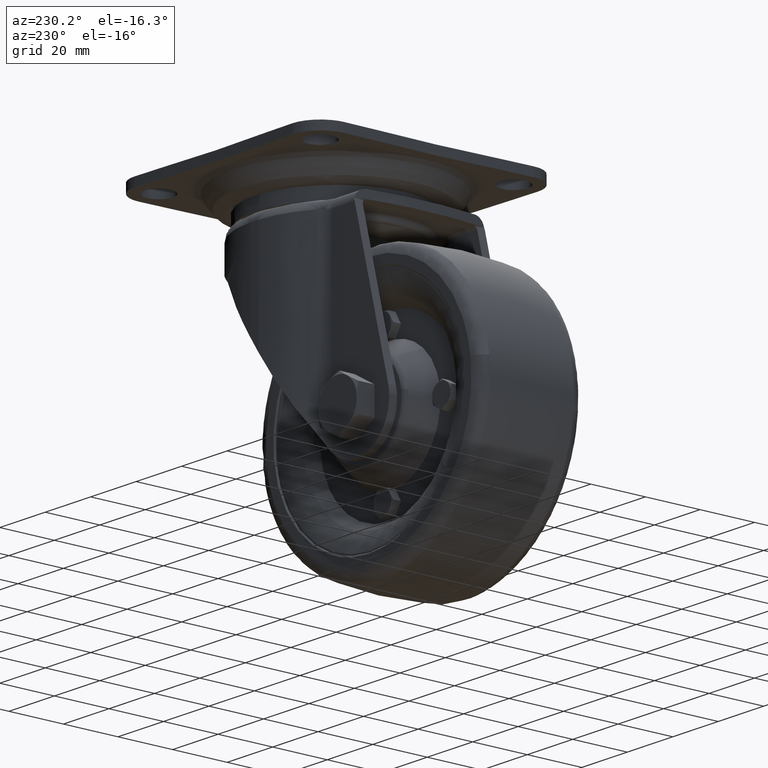
[diagram: clean part render]
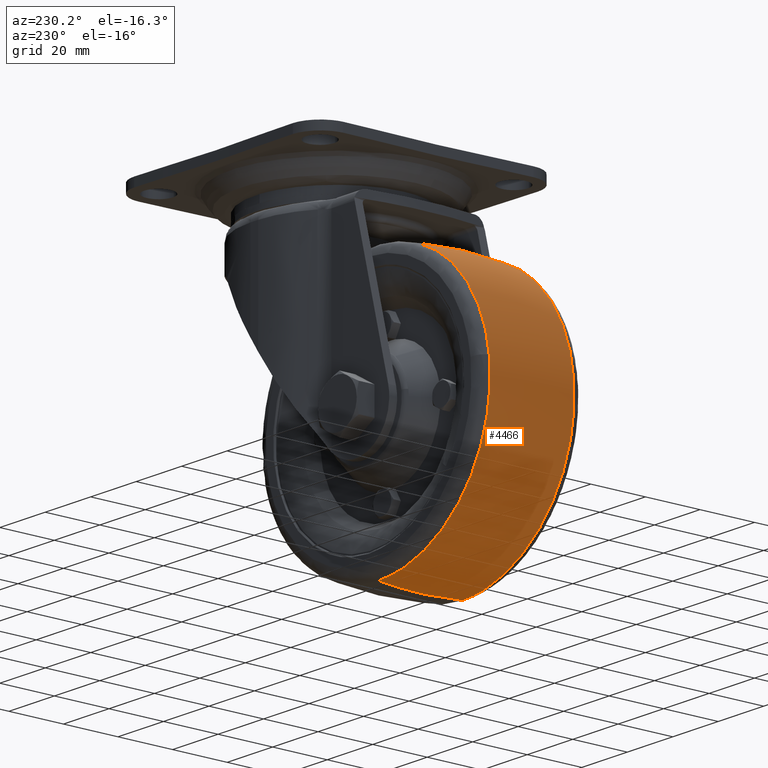
[diagram: same view with one face highlighted and labeled with its STEP entity id]
A machine part, auxiliary view. The second image highlights one B-rep face of the part: STEP entity #4466.
In plain terms, the highlighted face is a freeform B-spline surface patch.
Its self-contained STEP definition (entity closure, byte-faithful):
#4160=CARTESIAN_POINT('',(-85.818236050484543,15.410941017946090,-73.832822582874400));
#4161=VERTEX_POINT('',#4160);
#4175=CARTESIAN_POINT('',(-37.0,15.410940915619211,-30.793757167821699));
#4176=VERTEX_POINT('',#4175);
#4177=CARTESIAN_POINT('',(-37.0,15.410940915619211,-30.793757167821699));
#4178=CARTESIAN_POINT('',(-80.381137565101767,15.410940965465484,-30.793757107403259));
#4179=CARTESIAN_POINT('',(-85.818236050484543,15.410941017946085,-73.832822582874400));
#4187=(BOUNDED_CURVE()B_SPLINE_CURVE(2,(#4177,#4178,#4179),.UNSPECIFIED.,.F.,.U.)B_SPLINE_CURVE_WITH_KNOTS((3,3),(0.500000000000000,0.728321257185273),.UNSPECIFIED.)CURVE()GEOMETRIC_REPRESENTATION_ITEM()RATIONAL_B_SPLINE_CURVE((1.0,0.732505008237885,0.953608358954893))REPRESENTATION_ITEM(''));
#4188=EDGE_CURVE('',#4176,#4161,#4187,.T.);
#4254=CARTESIAN_POINT('',(-37.0,15.410940921642830,-129.206242890770990));
#4255=VERTEX_POINT('',#4254);
#4269=CARTESIAN_POINT('',(-85.818236050484543,15.410941017946088,-73.832822582874400));
#4270=CARTESIAN_POINT('',(-86.206241905495375,15.410941015369266,-76.904205618492156));
#4271=CARTESIAN_POINT('',(-86.206241875405738,15.410941012422700,-79.999999915611909));
#4272=CARTESIAN_POINT('',(-86.206241397144424,15.410940965588232,-129.206242837504990));
#4273=CARTESIAN_POINT('',(-37.0,15.410940921642830,-129.206242890770990));
#4281=(BOUNDED_CURVE()B_SPLINE_CURVE(2,(#4269,#4270,#4271,#4272,#4273),.UNSPECIFIED.,.F.,.U.)B_SPLINE_CURVE_WITH_KNOTS((3,2,3),(0.728321257185273,0.750000000000000,1.0),.UNSPECIFIED.)CURVE()GEOMETRIC_REPRESENTATION_ITEM()RATIONAL_B_SPLINE_CURVE((0.953608358954893,0.974601772948663,1.0,0.707106781186548,1.0))REPRESENTATION_ITEM(''));
#4282=EDGE_CURVE('',#4161,#4255,#4281,.T.);
#4332=CARTESIAN_POINT('',(-37.0,-15.410949828319410,-129.206241970835210));
#4333=VERTEX_POINT('',#4332);
#4334=CARTESIAN_POINT('',(-37.0,-15.410949828319410,-129.206241970835210));
#4335=CARTESIAN_POINT('',(-37.0,-11.091926602335240,-129.652378718584200));
#4336=CARTESIAN_POINT('',(-37.0,-0.808321223185215,-130.264928482562990));
#4337=CARTESIAN_POINT('',(-37.0,9.492315804941152,-129.817742732859390));
#4338=CARTESIAN_POINT('',(-37.0,15.410940921642830,-129.206242890770990));
#4339=B_SPLINE_CURVE_WITH_KNOTS('',3,(#4334,#4335,#4336,#4337,#4338),.UNSPECIFIED.,.F.,.U.,(4,1,4),(-2.635950E-009,13.026017227183649,30.876386310660759),.UNSPECIFIED.);
#4340=EDGE_CURVE('',#4333,#4255,#4339,.T.);
#4344=CARTESIAN_POINT('',(-37.0,-15.410954366041880,-30.793758468241620));
#4345=VERTEX_POINT('',#4344);
#4346=CARTESIAN_POINT('',(-37.0,-15.410954366041880,-30.793758468241620));
#4347=CARTESIAN_POINT('',(-37.0,-10.452081644387849,-30.281501000914361));
#4348=CARTESIAN_POINT('',(-37.0,-0.161665800609660,-29.735027568536768));
#4349=CARTESIAN_POINT('',(-37.0,10.132163600462411,-30.248421047761990));
#4350=CARTESIAN_POINT('',(-37.0,15.410940915619211,-30.793757167821699));
#4351=B_SPLINE_CURVE_WITH_KNOTS('',3,(#4346,#4347,#4348,#4349,#4350),.UNSPECIFIED.,.F.,.U.,(4,1,4),(-2.636153E-009,14.955780448462500,30.876390866495012),.UNSPECIFIED.);
#4352=EDGE_CURVE('',#4345,#4176,#4351,.T.);
#4387=CARTESIAN_POINT('',(-35.629053153888201,-16.959606387267502,-30.961844646449848));
#4388=CARTESIAN_POINT('',(-35.602163115407087,-8.507078152225919,-30.000000000000021));
#4389=CARTESIAN_POINT('',(-35.602163115407087,-3.673819E-015,-30.000000000000021));
#4390=CARTESIAN_POINT('',(-35.602163115407087,8.507074413307459,-30.000000000000011));
#4391=CARTESIAN_POINT('',(-35.629053130327286,16.959598981202003,-30.961843803686271));
#4392=CARTESIAN_POINT('',(-36.310534551342869,-16.959606387267506,-30.961844646449844));
#4393=CARTESIAN_POINT('',(-36.297011231676329,-8.507078152225919,-30.000000000000021));
#4394=CARTESIAN_POINT('',(-36.297011231676336,-3.673819E-015,-30.000000000000011));
#4395=CARTESIAN_POINT('',(-36.297011231676329,8.507074413307457,-30.000000000000011));
#4396=CARTESIAN_POINT('',(-36.310534539493794,16.959598981201996,-30.961843803686271));
#4397=CARTESIAN_POINT('',(-86.038155353550167,-16.959606387267510,-30.961844646449844));
#4398=CARTESIAN_POINT('',(-87.0,-8.507078152225917,-30.000000000000028));
#4399=CARTESIAN_POINT('',(-86.999999999999986,-3.673819E-015,-30.000000000000018));
#4400=CARTESIAN_POINT('',(-87.0,8.507074413307459,-30.000000000000021));
#4401=CARTESIAN_POINT('',(-86.038156196313736,16.959598981201996,-30.961843803686275));
#4402=CARTESIAN_POINT('',(-86.038155353550167,-16.959606387267510,-80.0));
#4403=CARTESIAN_POINT('',(-87.0,-8.507078152225919,-80.0));
#4404=CARTESIAN_POINT('',(-86.999999999999986,-3.673819E-015,-80.0));
#4405=CARTESIAN_POINT('',(-86.999999999999986,8.507074413307459,-80.0));
#4406=CARTESIAN_POINT('',(-86.038156196313736,16.959598981202003,-80.0));
#4407=CARTESIAN_POINT('',(-86.038155353550167,-16.959606387267510,-129.038155353550170));
#4408=CARTESIAN_POINT('',(-87.0,-8.507078152225917,-130.0));
#4409=CARTESIAN_POINT('',(-86.999999999999986,-3.673819E-015,-130.0));
#4410=CARTESIAN_POINT('',(-87.0,8.507074413307459,-130.0));
#4411=CARTESIAN_POINT('',(-86.038156196313736,16.959598981201996,-129.038156196313760));
#4412=CARTESIAN_POINT('',(-36.310534551342862,-16.959606387267502,-129.038155353550170));
#4413=CARTESIAN_POINT('',(-36.297011231676322,-8.507078152225919,-130.000000000000030));
#4414=CARTESIAN_POINT('',(-36.297011231676322,-3.673819E-015,-130.000000000000030));
#4415=CARTESIAN_POINT('',(-36.297011231676329,8.507074413307459,-129.999999999999940));
#4416=CARTESIAN_POINT('',(-36.310534539493780,16.959598981201996,-129.038156196313740));
#4417=CARTESIAN_POINT('',(-35.629053153888194,-16.959606387267499,-129.038155353550170));
#4418=CARTESIAN_POINT('',(-35.602163115407073,-8.507078152225919,-130.000000000000060));
#4419=CARTESIAN_POINT('',(-35.602163115407073,-3.673819E-015,-130.000000000000060));
#4420=CARTESIAN_POINT('',(-35.602163115407073,8.507074413307459,-129.999999999999970));
#4421=CARTESIAN_POINT('',(-35.629053130327279,16.959598981201999,-129.038156196313760));
#4429=(BOUNDED_SURFACE()B_SPLINE_SURFACE(2,2,((#4387,#4392,#4397,#4402,#4407,#4412,#4417),(#4388,#4393,#4398,#4403,#4408,#4413,#4418),(#4389,#4394,#4399,#4404,#4409,#4414,#4419),(#4390,#4395,#4400,#4405,#4410,#4415,#4420),(#4391,#4396,#4401,#4406,#4411,#4416,#4421)),.UNSPECIFIED.,.F.,.F.,.U.)B_SPLINE_SURFACE_WITH_KNOTS((3,2,3),(3,1,2,1,3),(0.0,17.164884969641200,34.329762485420510),(0.0,1.656854249492381,84.499566724111375,167.342279198730410,168.999133448222810),.UNSPECIFIED.)GEOMETRIC_REPRESENTATION_ITEM()RATIONAL_B_SPLINE_SURFACE(((0.990838547401866,0.985101562531011,0.692515334117395,0.979364577660156,0.692515334117395,0.985101562531011,0.990838547401866),(0.999616400913708,0.993828592008071,0.698650337820598,0.988040783102435,0.698650337820598,0.993828592008071,0.999616400913708),(1.011715728752538,1.005857864376269,0.707106781186548,1.0,0.707106781186548,1.005857864376269,1.011715728752538),(0.999616406167849,0.993828597231790,0.698650341492814,0.988040788295732,0.698650341492814,0.993828597231790,0.999616406167849),(0.990838555025443,0.985101570110447,0.692515339445654,0.979364585195451,0.692515339445654,0.985101570110447,0.990838555025443)))REPRESENTATION_ITEM('')SURFACE());
#4430=ORIENTED_EDGE('',*,*,#4340,.F.);
#4431=CARTESIAN_POINT('',(-86.015990900841317,-15.410951934033189,-84.322827190294305));
#4432=VERTEX_POINT('',#4431);
#4433=CARTESIAN_POINT('',(-86.015990900841317,-15.410951934033191,-84.322827190294305));
#4434=CARTESIAN_POINT('',(-82.057624747905450,-15.410949846406760,-129.206241986028350));
#4435=CARTESIAN_POINT('',(-37.0,-15.410949828319410,-129.206241970835210));
#4443=(BOUNDED_CURVE()B_SPLINE_CURVE(2,(#4433,#4434,#4435),.UNSPECIFIED.,.F.,.U.)B_SPLINE_CURVE_WITH_KNOTS((3,3),(0.765281544184648,1.0),.UNSPECIFIED.)CURVE()GEOMETRIC_REPRESENTATION_ITEM()RATIONAL_B_SPLINE_CURVE((0.966381852682920,0.725010223845274,1.0))REPRESENTATION_ITEM(''));
#4444=EDGE_CURVE('',#4432,#4333,#4443,.T.);
#4445=ORIENTED_EDGE('',*,*,#4444,.F.);
#4446=CARTESIAN_POINT('',(-37.0,-15.410954366041880,-30.793758468241620));
#4447=CARTESIAN_POINT('',(-86.206241250428747,-15.410954382604279,-30.793758482153812));
#4448=CARTESIAN_POINT('',(-86.206241422701808,-15.410952131830390,-80.000000248643715));
#4449=CARTESIAN_POINT('',(-86.206241430283654,-15.410952032772309,-82.165600246978286));
#4450=CARTESIAN_POINT('',(-86.015990900841317,-15.410951934033193,-84.322827190294305));
#4458=(BOUNDED_CURVE()B_SPLINE_CURVE(2,(#4446,#4447,#4448,#4449,#4450),.UNSPECIFIED.,.F.,.U.)B_SPLINE_CURVE_WITH_KNOTS((3,2,3),(0.500000000000000,0.750000000000000,0.765281544184649),.UNSPECIFIED.)CURVE()GEOMETRIC_REPRESENTATION_ITEM()RATIONAL_B_SPLINE_CURVE((1.0,0.707106781186548,1.0,0.982096557341273,0.966381852682920))REPRESENTATION_ITEM(''));
#4459=EDGE_CURVE('',#4345,#4432,#4458,.T.);
#4460=ORIENTED_EDGE('',*,*,#4459,.F.);
#4461=ORIENTED_EDGE('',*,*,#4352,.T.);
#4462=ORIENTED_EDGE('',*,*,#4188,.T.);
#4463=ORIENTED_EDGE('',*,*,#4282,.T.);
#4464=EDGE_LOOP('',(#4430,#4445,#4460,#4461,#4462,#4463));
#4465=FACE_OUTER_BOUND('',#4464,.T.);
#4466=ADVANCED_FACE('',(#4465),#4429,.T.);